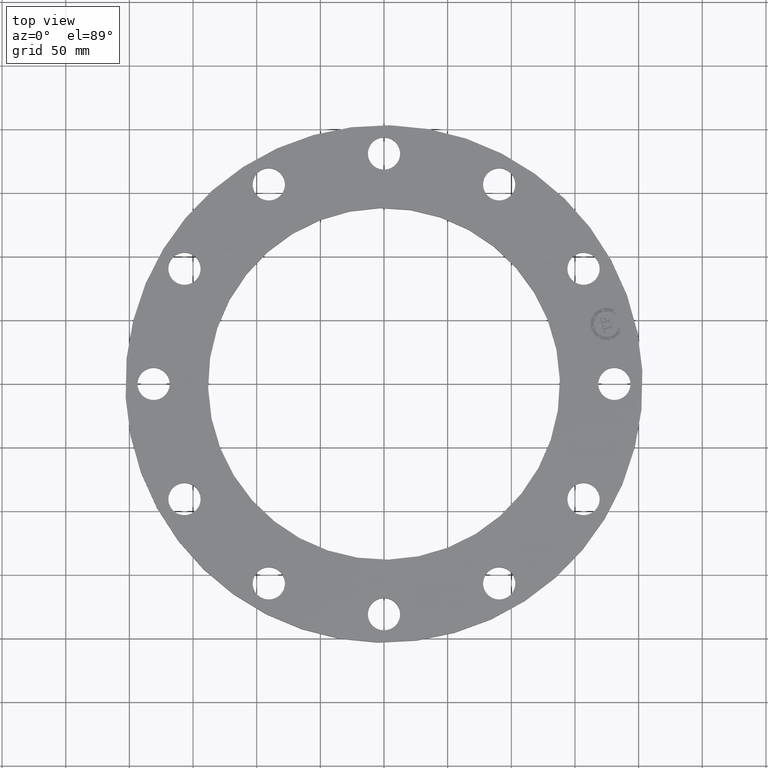
[diagram: clean part render]
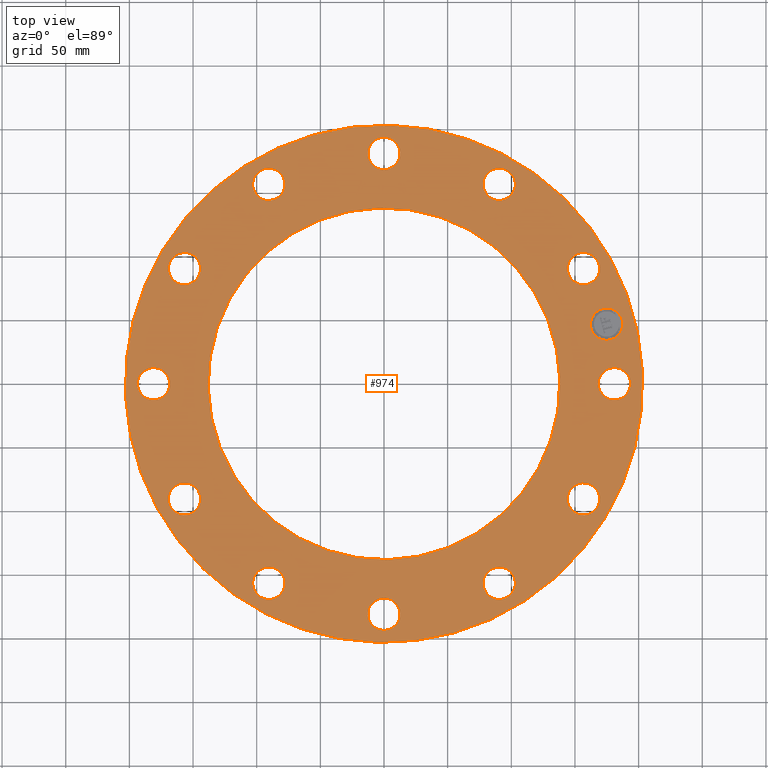
[diagram: same view with one face highlighted and labeled with its STEP entity id]
A machine part, top view. The second image highlights one B-rep face of the part: STEP entity #974.
In plain terms, the highlighted planar face has unit normal (0, 0, 1).
Its self-contained STEP definition (entity closure, byte-faithful):
#65=AXIS2_PLACEMENT_3D('Circle Axis2P3D',#63,#64,$) ;
#82=AXIS2_PLACEMENT_3D('Circle Axis2P3D',#80,#81,$) ;
#108=AXIS2_PLACEMENT_3D('Circle Axis2P3D',#106,#107,$) ;
#134=AXIS2_PLACEMENT_3D('Circle Axis2P3D',#132,#133,$) ;
#179=AXIS2_PLACEMENT_3D('Circle Axis2P3D',#177,#178,$) ;
#196=AXIS2_PLACEMENT_3D('Circle Axis2P3D',#194,#195,$) ;
#443=AXIS2_PLACEMENT_3D('Circle Axis2P3D',#441,#442,$) ;
#455=AXIS2_PLACEMENT_3D('Circle Axis2P3D',#453,#454,$) ;
#486=AXIS2_PLACEMENT_3D('Circle Axis2P3D',#484,#485,$) ;
#498=AXIS2_PLACEMENT_3D('Circle Axis2P3D',#496,#497,$) ;
#529=AXIS2_PLACEMENT_3D('Circle Axis2P3D',#527,#528,$) ;
#541=AXIS2_PLACEMENT_3D('Circle Axis2P3D',#539,#540,$) ;
#572=AXIS2_PLACEMENT_3D('Circle Axis2P3D',#570,#571,$) ;
#584=AXIS2_PLACEMENT_3D('Circle Axis2P3D',#582,#583,$) ;
#615=AXIS2_PLACEMENT_3D('Circle Axis2P3D',#613,#614,$) ;
#627=AXIS2_PLACEMENT_3D('Circle Axis2P3D',#625,#626,$) ;
#658=AXIS2_PLACEMENT_3D('Circle Axis2P3D',#656,#657,$) ;
#670=AXIS2_PLACEMENT_3D('Circle Axis2P3D',#668,#669,$) ;
#701=AXIS2_PLACEMENT_3D('Circle Axis2P3D',#699,#700,$) ;
#713=AXIS2_PLACEMENT_3D('Circle Axis2P3D',#711,#712,$) ;
#744=AXIS2_PLACEMENT_3D('Circle Axis2P3D',#742,#743,$) ;
#756=AXIS2_PLACEMENT_3D('Circle Axis2P3D',#754,#755,$) ;
#787=AXIS2_PLACEMENT_3D('Circle Axis2P3D',#785,#786,$) ;
#799=AXIS2_PLACEMENT_3D('Circle Axis2P3D',#797,#798,$) ;
#830=AXIS2_PLACEMENT_3D('Circle Axis2P3D',#828,#829,$) ;
#842=AXIS2_PLACEMENT_3D('Circle Axis2P3D',#840,#841,$) ;
#873=AXIS2_PLACEMENT_3D('Circle Axis2P3D',#871,#872,$) ;
#885=AXIS2_PLACEMENT_3D('Circle Axis2P3D',#883,#884,$) ;
#898=AXIS2_PLACEMENT_3D('Plane Axis2P3D',#895,#896,#897) ;
#958=AXIS2_PLACEMENT_3D('Circle Axis2P3D',#956,#957,$) ;
#967=AXIS2_PLACEMENT_3D('Circle Axis2P3D',#965,#966,$) ;
#46=CARTESIAN_POINT('Vertex',(6.68620871908,0.239712769303,0.688000000003)) ;
#60=CARTESIAN_POINT('Vertex',(7.56379128098,-0.239712769303,0.688000000003)) ;
#63=CARTESIAN_POINT('Axis2P3D Location',(7.12500000003,0.,0.688000000003)) ;
#80=CARTESIAN_POINT('Axis2P3D Location',(7.12500000003,0.,0.688000000003)) ;
#103=CARTESIAN_POINT('Vertex',(7.02066049515,3.83540430885,0.688000000003)) ;
#106=CARTESIAN_POINT('Axis2P3D Location',(0.,0.,0.688000000003)) ;
#110=CARTESIAN_POINT('Vertex',(-7.02066049515,-3.83540430885,0.688000000003)) ;
#132=CARTESIAN_POINT('Axis2P3D Location',(0.,0.,0.688000000003)) ;
#160=CARTESIAN_POINT('Vertex',(-4.7740491367,2.60807493002,0.688000000003)) ;
#174=CARTESIAN_POINT('Vertex',(4.7740491367,-2.60807493002,0.688000000003)) ;
#177=CARTESIAN_POINT('Axis2P3D Location',(-6.64385432059E-016,-2.09805925913E-016,0.688000000003)) ;
#194=CARTESIAN_POINT('Axis2P3D Location',(-6.64385432059E-016,-2.09805925913E-016,0.688000000003)) ;
#431=CARTESIAN_POINT('Vertex',(5.67057022108,3.55070170737,0.688000000003)) ;
#438=CARTESIAN_POINT('Vertex',(6.6702917829,3.57429829266,0.688000000003)) ;
#441=CARTESIAN_POINT('Axis2P3D Location',(6.17043100199,3.56250000001,0.688000000003)) ;
#453=CARTESIAN_POINT('Axis2P3D Location',(6.17043100199,3.56250000001,0.688000000003)) ;
#474=CARTESIAN_POINT('Vertex',(3.13550701171,5.91028299038,0.688000000003)) ;
#481=CARTESIAN_POINT('Vertex',(3.98949298832,6.4305790136,0.688000000003)) ;
#484=CARTESIAN_POINT('Axis2P3D Location',(3.56250000001,6.17043100199,0.688000000003)) ;
#496=CARTESIAN_POINT('Axis2P3D Location',(3.56250000001,6.17043100199,0.688000000003)) ;
#517=CARTESIAN_POINT('Vertex',(-0.239712769303,6.68620871908,0.688000000003)) ;
#524=CARTESIAN_POINT('Vertex',(0.239712769303,7.56379128098,0.688000000003)) ;
#527=CARTESIAN_POINT('Axis2P3D Location',(-6.82684516007E-016,7.12500000003,0.688000000003)) ;
#539=CARTESIAN_POINT('Axis2P3D Location',(-6.82684516007E-016,7.12500000003,0.688000000003)) ;
#560=CARTESIAN_POINT('Vertex',(-3.55070170737,5.67057022108,0.688000000003)) ;
#567=CARTESIAN_POINT('Vertex',(-3.57429829266,6.6702917829,0.688000000003)) ;
#570=CARTESIAN_POINT('Axis2P3D Location',(-3.56250000001,6.17043100199,0.688000000003)) ;
#582=CARTESIAN_POINT('Axis2P3D Location',(-3.56250000001,6.17043100199,0.688000000003)) ;
#603=CARTESIAN_POINT('Vertex',(-5.91028299038,3.13550701171,0.688000000003)) ;
#610=CARTESIAN_POINT('Vertex',(-6.4305790136,3.98949298832,0.688000000003)) ;
#613=CARTESIAN_POINT('Axis2P3D Location',(-6.17043100199,3.56250000001,0.688000000003)) ;
#625=CARTESIAN_POINT('Axis2P3D Location',(-6.17043100199,3.56250000001,0.688000000003)) ;
#646=CARTESIAN_POINT('Vertex',(-6.68620871908,-0.239712769303,0.688000000003)) ;
#653=CARTESIAN_POINT('Vertex',(-7.56379128098,0.239712769303,0.688000000003)) ;
#656=CARTESIAN_POINT('Axis2P3D Location',(-7.12500000003,8.72560844396E-016,0.688000000003)) ;
#668=CARTESIAN_POINT('Axis2P3D Location',(-7.12500000003,8.72560844396E-016,0.688000000003)) ;
#689=CARTESIAN_POINT('Vertex',(-5.67057022108,-3.55070170737,0.688000000003)) ;
#696=CARTESIAN_POINT('Vertex',(-6.6702917829,-3.57429829266,0.688000000003)) ;
#699=CARTESIAN_POINT('Axis2P3D Location',(-6.17043100199,-3.56250000001,0.688000000003)) ;
#711=CARTESIAN_POINT('Axis2P3D Location',(-6.17043100199,-3.56250000001,0.688000000003)) ;
#732=CARTESIAN_POINT('Vertex',(-3.13550701171,-5.91028299038,0.688000000003)) ;
#739=CARTESIAN_POINT('Vertex',(-3.98949298832,-6.4305790136,0.688000000003)) ;
#742=CARTESIAN_POINT('Axis2P3D Location',(-3.56250000001,-6.17043100199,0.688000000003)) ;
#754=CARTESIAN_POINT('Axis2P3D Location',(-3.56250000001,-6.17043100199,0.688000000003)) ;
#775=CARTESIAN_POINT('Vertex',(0.239712769303,-6.68620871908,0.688000000003)) ;
#782=CARTESIAN_POINT('Vertex',(-0.239712769303,-7.56379128098,0.688000000003)) ;
#785=CARTESIAN_POINT('Axis2P3D Location',(-1.30884126659E-015,-7.12500000003,0.688000000003)) ;
#797=CARTESIAN_POINT('Axis2P3D Location',(-1.30884126659E-015,-7.12500000003,0.688000000003)) ;
#818=CARTESIAN_POINT('Vertex',(3.55070170737,-5.67057022108,0.688000000003)) ;
#825=CARTESIAN_POINT('Vertex',(3.57429829266,-6.6702917829,0.688000000003)) ;
#828=CARTESIAN_POINT('Axis2P3D Location',(3.56250000001,-6.17043100199,0.688000000003)) ;
#840=CARTESIAN_POINT('Axis2P3D Location',(3.56250000001,-6.17043100199,0.688000000003)) ;
#861=CARTESIAN_POINT('Vertex',(5.91028299038,-3.13550701171,0.688000000003)) ;
#868=CARTESIAN_POINT('Vertex',(6.4305790136,-3.98949298832,0.688000000003)) ;
#871=CARTESIAN_POINT('Axis2P3D Location',(6.17043100199,-3.56250000001,0.688000000003)) ;
#883=CARTESIAN_POINT('Axis2P3D Location',(6.17043100199,-3.56250000001,0.688000000003)) ;
#895=CARTESIAN_POINT('Axis2P3D Location',(8.00000000003,0.,0.688000000003)) ;
#956=CARTESIAN_POINT('Axis2P3D Location',(6.88222151234,1.84408569636,0.688000000003)) ;
#960=CARTESIAN_POINT('Vertex',(6.75281199108,2.32704860468,0.688000000003)) ;
#962=CARTESIAN_POINT('Vertex',(7.01163103359,1.36112278805,0.688000000003)) ;
#965=CARTESIAN_POINT('Axis2P3D Location',(6.88222151234,1.84408569636,0.688000000003)) ;
#64=DIRECTION('Axis2P3D Direction',(0.,-0.,-0.0393700787402)) ;
#81=DIRECTION('Axis2P3D Direction',(0.,-0.,-0.0393700787402)) ;
#107=DIRECTION('Axis2P3D Direction',(0.,0.,0.0393700787402)) ;
#133=DIRECTION('Axis2P3D Direction',(0.,0.,0.0393700787402)) ;
#178=DIRECTION('Axis2P3D Direction',(0.,-0.,-0.0393700787402)) ;
#195=DIRECTION('Axis2P3D Direction',(0.,-0.,-0.0393700787402)) ;
#442=DIRECTION('Axis2P3D Direction',(0.,0.,-0.0393700787402)) ;
#454=DIRECTION('Axis2P3D Direction',(0.,0.,-0.0393700787402)) ;
#485=DIRECTION('Axis2P3D Direction',(0.,0.,-0.0393700787402)) ;
#497=DIRECTION('Axis2P3D Direction',(0.,0.,-0.0393700787402)) ;
#528=DIRECTION('Axis2P3D Direction',(0.,0.,-0.0393700787402)) ;
#540=DIRECTION('Axis2P3D Direction',(0.,0.,-0.0393700787402)) ;
#571=DIRECTION('Axis2P3D Direction',(0.,0.,-0.0393700787402)) ;
#583=DIRECTION('Axis2P3D Direction',(0.,0.,-0.0393700787402)) ;
#614=DIRECTION('Axis2P3D Direction',(0.,0.,-0.0393700787402)) ;
#626=DIRECTION('Axis2P3D Direction',(0.,0.,-0.0393700787402)) ;
#657=DIRECTION('Axis2P3D Direction',(0.,0.,-0.0393700787402)) ;
#669=DIRECTION('Axis2P3D Direction',(0.,0.,-0.0393700787402)) ;
#700=DIRECTION('Axis2P3D Direction',(-0.,0.,-0.0393700787402)) ;
#712=DIRECTION('Axis2P3D Direction',(-0.,0.,-0.0393700787402)) ;
#743=DIRECTION('Axis2P3D Direction',(-0.,0.,-0.0393700787402)) ;
#755=DIRECTION('Axis2P3D Direction',(-0.,0.,-0.0393700787402)) ;
#786=DIRECTION('Axis2P3D Direction',(-0.,0.,-0.0393700787402)) ;
#798=DIRECTION('Axis2P3D Direction',(-0.,0.,-0.0393700787402)) ;
#829=DIRECTION('Axis2P3D Direction',(0.,-0.,-0.0393700787402)) ;
#841=DIRECTION('Axis2P3D Direction',(0.,-0.,-0.0393700787402)) ;
#872=DIRECTION('Axis2P3D Direction',(0.,-0.,-0.0393700787402)) ;
#884=DIRECTION('Axis2P3D Direction',(0.,-0.,-0.0393700787402)) ;
#896=DIRECTION('Axis2P3D Direction',(0.,0.,0.0393700787402)) ;
#897=DIRECTION('Axis2P3D XDirection',(0.0393700787402,0.,0.)) ;
#957=DIRECTION('Axis2P3D Direction',(0.,0.,0.0393700787402)) ;
#966=DIRECTION('Axis2P3D Direction',(0.,0.,0.0393700787402)) ;
#901=ORIENTED_EDGE('',*,*,#112,.T.) ;
#902=ORIENTED_EDGE('',*,*,#136,.T.) ;
#905=ORIENTED_EDGE('',*,*,#84,.F.) ;
#906=ORIENTED_EDGE('',*,*,#67,.F.) ;
#909=ORIENTED_EDGE('',*,*,#198,.F.) ;
#910=ORIENTED_EDGE('',*,*,#181,.F.) ;
#913=ORIENTED_EDGE('',*,*,#445,.F.) ;
#914=ORIENTED_EDGE('',*,*,#457,.F.) ;
#917=ORIENTED_EDGE('',*,*,#488,.F.) ;
#918=ORIENTED_EDGE('',*,*,#500,.F.) ;
#921=ORIENTED_EDGE('',*,*,#531,.F.) ;
#922=ORIENTED_EDGE('',*,*,#543,.F.) ;
#925=ORIENTED_EDGE('',*,*,#574,.F.) ;
#926=ORIENTED_EDGE('',*,*,#586,.F.) ;
#929=ORIENTED_EDGE('',*,*,#617,.F.) ;
#930=ORIENTED_EDGE('',*,*,#629,.F.) ;
#933=ORIENTED_EDGE('',*,*,#660,.F.) ;
#934=ORIENTED_EDGE('',*,*,#672,.F.) ;
#937=ORIENTED_EDGE('',*,*,#703,.F.) ;
#938=ORIENTED_EDGE('',*,*,#715,.F.) ;
#941=ORIENTED_EDGE('',*,*,#746,.F.) ;
#942=ORIENTED_EDGE('',*,*,#758,.F.) ;
#945=ORIENTED_EDGE('',*,*,#789,.F.) ;
#946=ORIENTED_EDGE('',*,*,#801,.F.) ;
#949=ORIENTED_EDGE('',*,*,#832,.F.) ;
#950=ORIENTED_EDGE('',*,*,#844,.F.) ;
#953=ORIENTED_EDGE('',*,*,#875,.F.) ;
#954=ORIENTED_EDGE('',*,*,#887,.F.) ;
#971=ORIENTED_EDGE('',*,*,#964,.F.) ;
#972=ORIENTED_EDGE('',*,*,#969,.F.) ;
#907=FACE_BOUND('',#904,.T.) ;
#911=FACE_BOUND('',#908,.T.) ;
#915=FACE_BOUND('',#912,.T.) ;
#919=FACE_BOUND('',#916,.T.) ;
#923=FACE_BOUND('',#920,.T.) ;
#927=FACE_BOUND('',#924,.T.) ;
#931=FACE_BOUND('',#928,.T.) ;
#935=FACE_BOUND('',#932,.T.) ;
#939=FACE_BOUND('',#936,.T.) ;
#943=FACE_BOUND('',#940,.T.) ;
#947=FACE_BOUND('',#944,.T.) ;
#951=FACE_BOUND('',#948,.T.) ;
#955=FACE_BOUND('',#952,.T.) ;
#973=FACE_BOUND('',#970,.T.) ;
#974=ADVANCED_FACE('PartBody',(#903,#907,#911,#915,#919,#923,#927,#931,#935,#939,#943,#947,#951,#955,#973),#899,.T.) ;
#66=CIRCLE('generated circle',#65,0.500000000002) ;
#83=CIRCLE('generated circle',#82,0.500000000002) ;
#109=CIRCLE('generated circle',#108,8.00000000003) ;
#135=CIRCLE('generated circle',#134,8.00000000003) ;
#180=CIRCLE('generated circle',#179,5.44000000002) ;
#197=CIRCLE('generated circle',#196,5.44000000002) ;
#444=CIRCLE('generated circle',#443,0.500000000002) ;
#456=CIRCLE('generated circle',#455,0.500000000002) ;
#487=CIRCLE('generated circle',#486,0.500000000002) ;
#499=CIRCLE('generated circle',#498,0.500000000002) ;
#530=CIRCLE('generated circle',#529,0.500000000002) ;
#542=CIRCLE('generated circle',#541,0.500000000002) ;
#573=CIRCLE('generated circle',#572,0.500000000002) ;
#585=CIRCLE('generated circle',#584,0.500000000002) ;
#616=CIRCLE('generated circle',#615,0.500000000002) ;
#628=CIRCLE('generated circle',#627,0.500000000002) ;
#659=CIRCLE('generated circle',#658,0.500000000002) ;
#671=CIRCLE('generated circle',#670,0.500000000002) ;
#702=CIRCLE('generated circle',#701,0.500000000002) ;
#714=CIRCLE('generated circle',#713,0.500000000002) ;
#745=CIRCLE('generated circle',#744,0.500000000002) ;
#757=CIRCLE('generated circle',#756,0.500000000002) ;
#788=CIRCLE('generated circle',#787,0.500000000002) ;
#800=CIRCLE('generated circle',#799,0.500000000002) ;
#831=CIRCLE('generated circle',#830,0.500000000002) ;
#843=CIRCLE('generated circle',#842,0.500000000002) ;
#874=CIRCLE('generated circle',#873,0.500000000002) ;
#886=CIRCLE('generated circle',#885,0.500000000002) ;
#959=CIRCLE('generated circle',#958,0.499999995002) ;
#968=CIRCLE('generated circle',#967,0.499999995002) ;
#67=EDGE_CURVE('',#61,#47,#66,.F.) ;
#84=EDGE_CURVE('',#47,#61,#83,.F.) ;
#112=EDGE_CURVE('',#111,#104,#109,.T.) ;
#136=EDGE_CURVE('',#104,#111,#135,.T.) ;
#181=EDGE_CURVE('',#175,#161,#180,.F.) ;
#198=EDGE_CURVE('',#161,#175,#197,.F.) ;
#445=EDGE_CURVE('',#439,#432,#444,.F.) ;
#457=EDGE_CURVE('',#432,#439,#456,.F.) ;
#488=EDGE_CURVE('',#482,#475,#487,.F.) ;
#500=EDGE_CURVE('',#475,#482,#499,.F.) ;
#531=EDGE_CURVE('',#525,#518,#530,.F.) ;
#543=EDGE_CURVE('',#518,#525,#542,.F.) ;
#574=EDGE_CURVE('',#568,#561,#573,.F.) ;
#586=EDGE_CURVE('',#561,#568,#585,.F.) ;
#617=EDGE_CURVE('',#611,#604,#616,.F.) ;
#629=EDGE_CURVE('',#604,#611,#628,.F.) ;
#660=EDGE_CURVE('',#654,#647,#659,.F.) ;
#672=EDGE_CURVE('',#647,#654,#671,.F.) ;
#703=EDGE_CURVE('',#697,#690,#702,.F.) ;
#715=EDGE_CURVE('',#690,#697,#714,.F.) ;
#746=EDGE_CURVE('',#740,#733,#745,.F.) ;
#758=EDGE_CURVE('',#733,#740,#757,.F.) ;
#789=EDGE_CURVE('',#783,#776,#788,.F.) ;
#801=EDGE_CURVE('',#776,#783,#800,.F.) ;
#832=EDGE_CURVE('',#826,#819,#831,.F.) ;
#844=EDGE_CURVE('',#819,#826,#843,.F.) ;
#875=EDGE_CURVE('',#869,#862,#874,.F.) ;
#887=EDGE_CURVE('',#862,#869,#886,.F.) ;
#964=EDGE_CURVE('',#961,#963,#959,.T.) ;
#969=EDGE_CURVE('',#963,#961,#968,.T.) ;
#900=EDGE_LOOP('',(#901,#902)) ;
#904=EDGE_LOOP('',(#905,#906)) ;
#908=EDGE_LOOP('',(#909,#910)) ;
#912=EDGE_LOOP('',(#913,#914)) ;
#916=EDGE_LOOP('',(#917,#918)) ;
#920=EDGE_LOOP('',(#921,#922)) ;
#924=EDGE_LOOP('',(#925,#926)) ;
#928=EDGE_LOOP('',(#929,#930)) ;
#932=EDGE_LOOP('',(#933,#934)) ;
#936=EDGE_LOOP('',(#937,#938)) ;
#940=EDGE_LOOP('',(#941,#942)) ;
#944=EDGE_LOOP('',(#945,#946)) ;
#948=EDGE_LOOP('',(#949,#950)) ;
#952=EDGE_LOOP('',(#953,#954)) ;
#970=EDGE_LOOP('',(#971,#972)) ;
#903=FACE_OUTER_BOUND('',#900,.T.) ;
#899=PLANE('',#898) ;
#47=VERTEX_POINT('',#46) ;
#61=VERTEX_POINT('',#60) ;
#104=VERTEX_POINT('',#103) ;
#111=VERTEX_POINT('',#110) ;
#161=VERTEX_POINT('',#160) ;
#175=VERTEX_POINT('',#174) ;
#432=VERTEX_POINT('',#431) ;
#439=VERTEX_POINT('',#438) ;
#475=VERTEX_POINT('',#474) ;
#482=VERTEX_POINT('',#481) ;
#518=VERTEX_POINT('',#517) ;
#525=VERTEX_POINT('',#524) ;
#561=VERTEX_POINT('',#560) ;
#568=VERTEX_POINT('',#567) ;
#604=VERTEX_POINT('',#603) ;
#611=VERTEX_POINT('',#610) ;
#647=VERTEX_POINT('',#646) ;
#654=VERTEX_POINT('',#653) ;
#690=VERTEX_POINT('',#689) ;
#697=VERTEX_POINT('',#696) ;
#733=VERTEX_POINT('',#732) ;
#740=VERTEX_POINT('',#739) ;
#776=VERTEX_POINT('',#775) ;
#783=VERTEX_POINT('',#782) ;
#819=VERTEX_POINT('',#818) ;
#826=VERTEX_POINT('',#825) ;
#862=VERTEX_POINT('',#861) ;
#869=VERTEX_POINT('',#868) ;
#961=VERTEX_POINT('',#960) ;
#963=VERTEX_POINT('',#962) ;